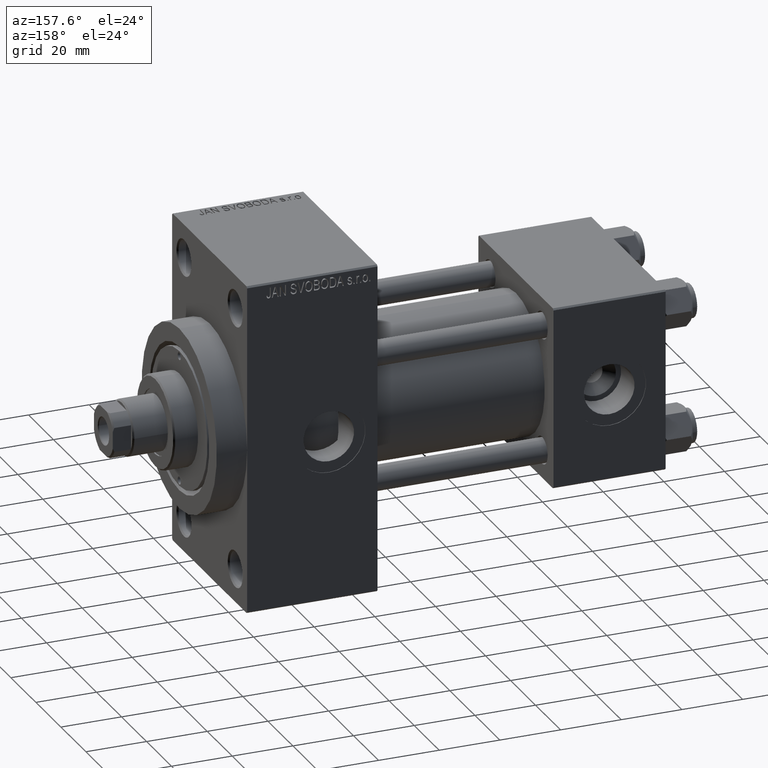
[diagram: clean part render]
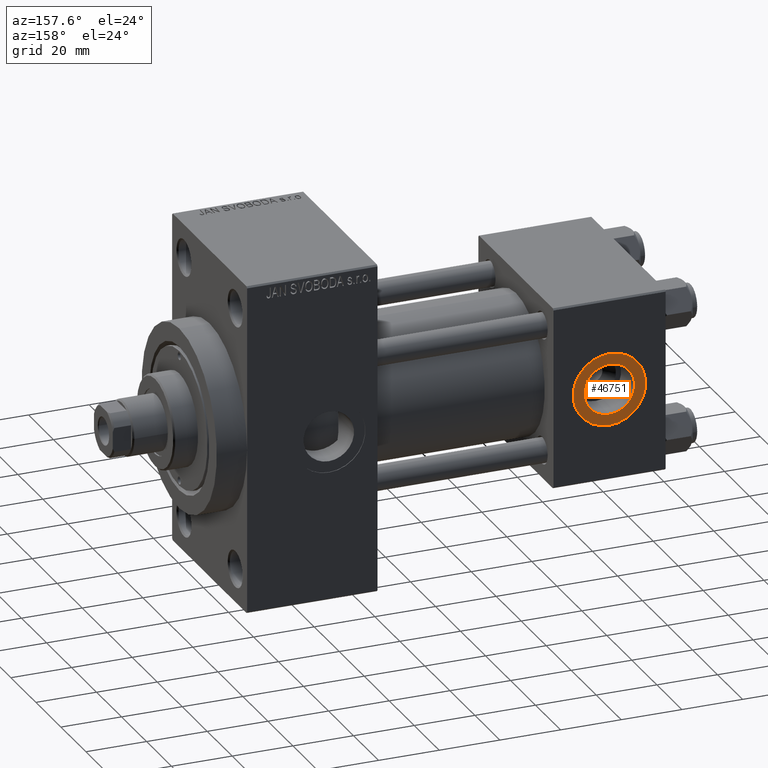
[diagram: same view with one face highlighted and labeled with its STEP entity id]
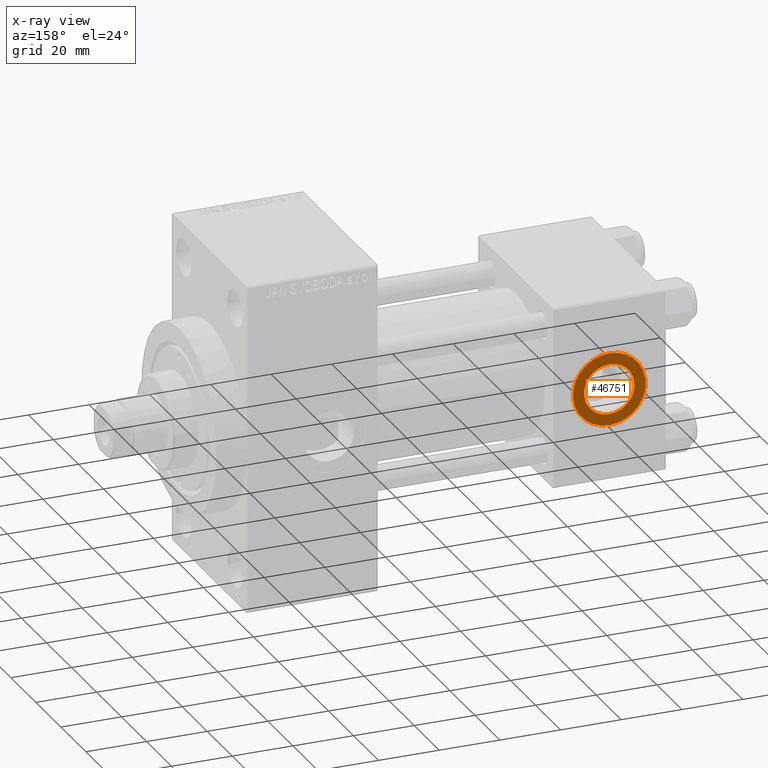
[diagram: x-ray of the same camera — body ghosted, the highlighted face saturated]
A machine part, auxiliary view. The second image highlights one B-rep face of the part: STEP entity #46751.
The next image is the same camera in x-ray: the body ghosted, the highlighted face saturated — about 0% of this face is hidden behind the body in this view.
In plain terms, the highlighted planar face has unit normal (0, 1, 0).
Its self-contained STEP definition (entity closure, byte-faithful):
#110 = CARTESIAN_POINT ( 'NONE',  ( 18.50000000000000000, 29.79999999999999361, 8.330000000000001847 ) ) ;
#521 = FACE_OUTER_BOUND ( 'NONE', #6195, .T. ) ;
#2745 = DIRECTION ( 'NONE',  ( 0.000000000000000000, 1.000000000000000000, 0.000000000000000000 ) ) ;
#4123 = FACE_BOUND ( 'NONE', #17005, .T. ) ;
#4473 = VERTEX_POINT ( 'NONE', #33149 ) ;
#6195 = EDGE_LOOP ( 'NONE', ( #26302, #31181 ) ) ;
#6199 = CIRCLE ( 'NONE', #41443, 8.330000000000001847 ) ;
#8848 = CARTESIAN_POINT ( 'NONE',  ( 18.50000000000000000, 29.79999999999999361, 0.000000000000000000 ) ) ;
#11383 = AXIS2_PLACEMENT_3D ( 'NONE', #16015, #2745, #13537 ) ;
#12798 = DIRECTION ( 'NONE',  ( 0.000000000000000000, 0.000000000000000000, 1.000000000000000000 ) ) ;
#13537 = DIRECTION ( 'NONE',  ( 0.000000000000000000, 0.000000000000000000, 1.000000000000000000 ) ) ;
#14788 = EDGE_CURVE ( 'NONE', #23585, #20360, #24318, .T. ) ;
#16015 = CARTESIAN_POINT ( 'NONE',  ( 18.50000000000000000, 29.79999999999999361, 0.000000000000000000 ) ) ;
#16345 = EDGE_CURVE ( 'NONE', #17610, #4473, #16599, .T. ) ;
#16599 = CIRCLE ( 'NONE', #25023, 12.00000000000000178 ) ;
#17005 = EDGE_LOOP ( 'NONE', ( #26192, #43727 ) ) ;
#17610 = VERTEX_POINT ( 'NONE', #43823 ) ;
#20360 = VERTEX_POINT ( 'NONE', #110 ) ;
#20766 = CARTESIAN_POINT ( 'NONE',  ( 18.50000000000000000, 29.79999999999999361, -8.330000000000001847 ) ) ;
#22654 = EDGE_CURVE ( 'NONE', #4473, #17610, #38213, .T. ) ;
#23585 = VERTEX_POINT ( 'NONE', #20766 ) ;
#24318 = CIRCLE ( 'NONE', #38085, 8.330000000000001847 ) ;
#24959 = AXIS2_PLACEMENT_3D ( 'NONE', #43498, #43731, #26191 ) ;
#25023 = AXIS2_PLACEMENT_3D ( 'NONE', #45684, #38475, #12798 ) ;
#25246 = PLANE ( 'NONE',  #24959 ) ;
#25561 = CARTESIAN_POINT ( 'NONE',  ( 18.50000000000000000, 29.79999999999999361, 0.000000000000000000 ) ) ;
#26191 = DIRECTION ( 'NONE',  ( 0.000000000000000000, -0.000000000000000000, 1.000000000000000000 ) ) ;
#26192 = ORIENTED_EDGE ( 'NONE', *, *, #34249, .F. ) ;
#26302 = ORIENTED_EDGE ( 'NONE', *, *, #16345, .T. ) ;
#31181 = ORIENTED_EDGE ( 'NONE', *, *, #22654, .T. ) ;
#31606 = DIRECTION ( 'NONE',  ( 0.000000000000000000, 1.000000000000000000, 0.000000000000000000 ) ) ;
#33149 = CARTESIAN_POINT ( 'NONE',  ( 18.50000000000000000, 29.79999999999999361, -12.00000000000000178 ) ) ;
#34249 = EDGE_CURVE ( 'NONE', #20360, #23585, #6199, .T. ) ;
#38085 = AXIS2_PLACEMENT_3D ( 'NONE', #8848, #31606, #46263 ) ;
#38213 = CIRCLE ( 'NONE', #11383, 12.00000000000000178 ) ;
#38475 = DIRECTION ( 'NONE',  ( 0.000000000000000000, 1.000000000000000000, 0.000000000000000000 ) ) ;
#39506 = DIRECTION ( 'NONE',  ( 0.000000000000000000, 0.000000000000000000, 1.000000000000000000 ) ) ;
#40209 = DIRECTION ( 'NONE',  ( 0.000000000000000000, 1.000000000000000000, 0.000000000000000000 ) ) ;
#41443 = AXIS2_PLACEMENT_3D ( 'NONE', #25561, #40209, #39506 ) ;
#43498 = CARTESIAN_POINT ( 'NONE',  ( 18.50000000000000000, 29.79999999999999361, 0.000000000000000000 ) ) ;
#43727 = ORIENTED_EDGE ( 'NONE', *, *, #14788, .F. ) ;
#43731 = DIRECTION ( 'NONE',  ( 0.000000000000000000, 1.000000000000000000, 0.000000000000000000 ) ) ;
#43823 = CARTESIAN_POINT ( 'NONE',  ( 18.50000000000000000, 29.79999999999999361, 12.00000000000000178 ) ) ;
#45684 = CARTESIAN_POINT ( 'NONE',  ( 18.50000000000000000, 29.79999999999999361, 0.000000000000000000 ) ) ;
#46263 = DIRECTION ( 'NONE',  ( 0.000000000000000000, 0.000000000000000000, 1.000000000000000000 ) ) ;
#46751 = ADVANCED_FACE ( 'NONE', ( #4123, #521 ), #25246, .T. ) ;